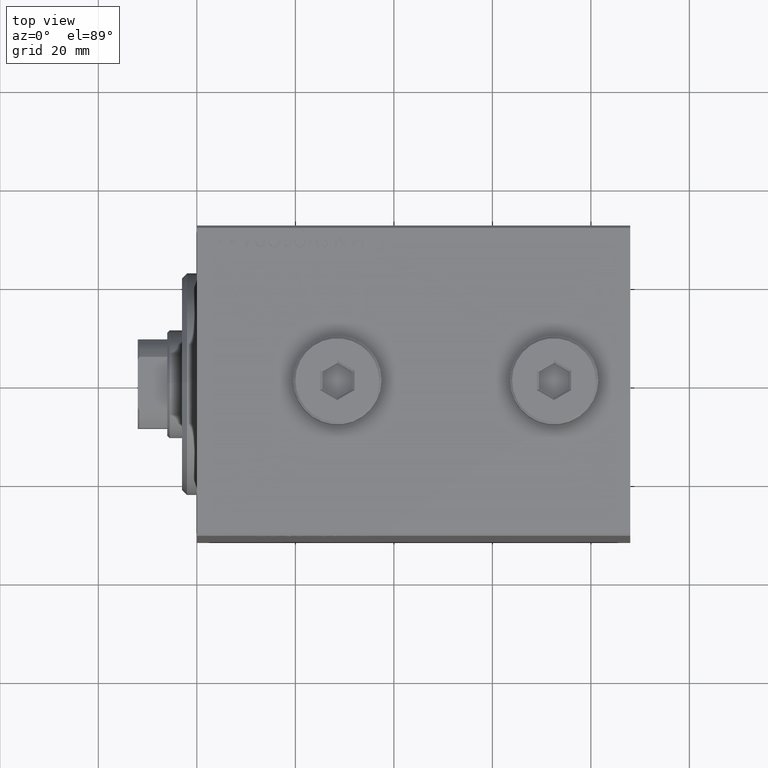
[diagram: clean part render]
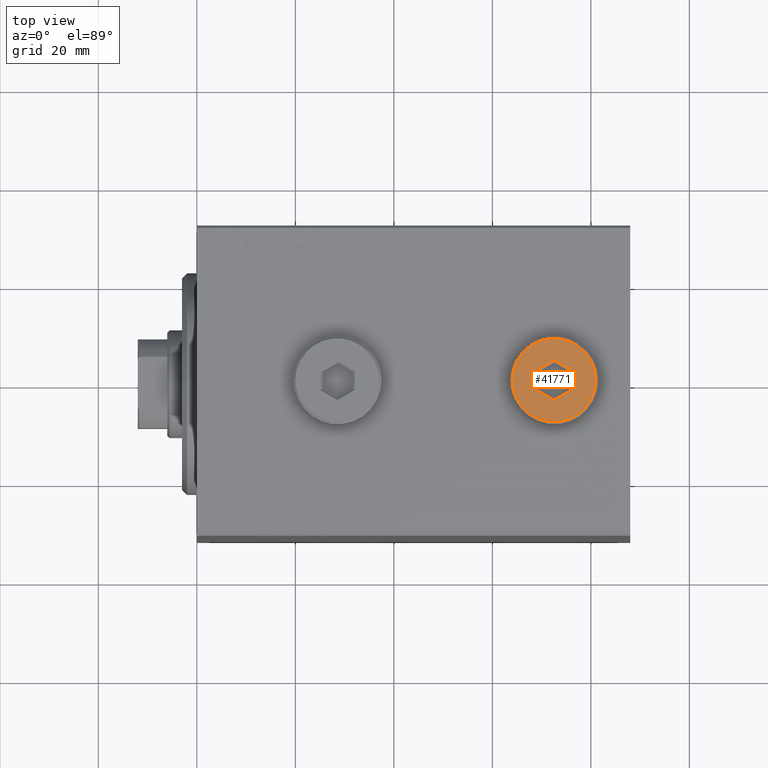
[diagram: same view with one face highlighted and labeled with its STEP entity id]
A machine part, top view. The second image highlights one B-rep face of the part: STEP entity #41771.
In plain terms, the highlighted planar face has unit normal (0, 0, 1).
Its self-contained STEP definition (entity closure, byte-faithful):
#748 = VERTEX_POINT ( 'NONE', #1966 ) ;
#1966 = CARTESIAN_POINT ( 'NONE',  ( -8.500000000000010658, 0.000000000000000000, 5.000000000000000000 ) ) ;
#2104 = CARTESIAN_POINT ( 'NONE',  ( 3.250000000000003109, 2.165063509461103042, 5.000000000000000000 ) ) ;
#2198 = CIRCLE ( 'NONE', #41950, 8.500000000000010658 ) ;
#2341 = FACE_BOUND ( 'NONE', #21967, .T. ) ;
#3637 = DIRECTION ( 'NONE',  ( 0.000000000000000000, -1.000000000000000000, 0.000000000000000000 ) ) ;
#4098 = EDGE_CURVE ( 'NONE', #9130, #30801, #15894, .T. ) ;
#4361 = DIRECTION ( 'NONE',  ( 1.000000000000000000, 0.000000000000000000, 0.000000000000000000 ) ) ;
#5094 = DIRECTION ( 'NONE',  ( 0.8660254037844387076, -0.4999999999999998890, 0.000000000000000000 ) ) ;
#5925 = CARTESIAN_POINT ( 'NONE',  ( -3.500000000000006661, 2.020725942163692945, 5.000000000000000000 ) ) ;
#6188 = VECTOR ( 'NONE', #3637, 1000.000000000000000 ) ;
#7112 = ORIENTED_EDGE ( 'NONE', *, *, #37215, .T. ) ;
#7700 = EDGE_CURVE ( 'NONE', #39334, #9130, #16422, .T. ) ;
#8735 = DIRECTION ( 'NONE',  ( -0.8660254037844385966, 0.4999999999999999445, 0.000000000000000000 ) ) ;
#9130 = VERTEX_POINT ( 'NONE', #32238 ) ;
#9147 = CARTESIAN_POINT ( 'NONE',  ( -3.500000000000006661, -2.020725942163694278, 5.000000000000000000 ) ) ;
#9254 = PLANE ( 'NONE',  #12473 ) ;
#9929 = DIRECTION ( 'NONE',  ( 1.000000000000000000, 0.000000000000000000, -0.000000000000000000 ) ) ;
#10497 = EDGE_CURVE ( 'NONE', #18276, #23288, #44279, .T. ) ;
#11286 = DIRECTION ( 'NONE',  ( 0.000000000000000000, 0.000000000000000000, 1.000000000000000000 ) ) ;
#11695 = AXIS2_PLACEMENT_3D ( 'NONE', #24902, #39412, #35495 ) ;
#12473 = AXIS2_PLACEMENT_3D ( 'NONE', #19642, #13385, #9929 ) ;
#13385 = DIRECTION ( 'NONE',  ( 0.000000000000000000, 0.000000000000000000, 1.000000000000000000 ) ) ;
#13876 = VECTOR ( 'NONE', #16874, 1000.000000000000000 ) ;
#15783 = EDGE_CURVE ( 'NONE', #20210, #748, #2198, .T. ) ;
#15894 = LINE ( 'NONE', #33410, #18030 ) ;
#15928 = CARTESIAN_POINT ( 'NONE',  ( 3.500000000000006661, 2.020725942163694722, 5.000000000000000000 ) ) ;
#16380 = LINE ( 'NONE', #40593, #18951 ) ;
#16422 = LINE ( 'NONE', #45216, #13876 ) ;
#16874 = DIRECTION ( 'NONE',  ( -0.8660254037844387076, -0.4999999999999998890, 0.000000000000000000 ) ) ;
#16951 = EDGE_LOOP ( 'NONE', ( #18998, #36371 ) ) ;
#17691 = EDGE_CURVE ( 'NONE', #18911, #18276, #25558, .T. ) ;
#18030 = VECTOR ( 'NONE', #8735, 1000.000000000000114 ) ;
#18178 = DIRECTION ( 'NONE',  ( 0.8660254037844387076, 0.4999999999999998335, 0.000000000000000000 ) ) ;
#18276 = VERTEX_POINT ( 'NONE', #34845 ) ;
#18911 = VERTEX_POINT ( 'NONE', #5925 ) ;
#18951 = VECTOR ( 'NONE', #23538, 1000.000000000000000 ) ;
#18998 = ORIENTED_EDGE ( 'NONE', *, *, #40629, .T. ) ;
#19642 = CARTESIAN_POINT ( 'NONE',  ( 0.000000000000000000, 0.000000000000000000, 5.000000000000000000 ) ) ;
#20210 = VERTEX_POINT ( 'NONE', #23423 ) ;
#21181 = CARTESIAN_POINT ( 'NONE',  ( -0.2500000000000027756, 3.897114317029978459, 5.000000000000000000 ) ) ;
#21967 = EDGE_LOOP ( 'NONE', ( #7112, #42741, #38911, #30120, #41321, #37653 ) ) ;
#23288 = VERTEX_POINT ( 'NONE', #15928 ) ;
#23423 = CARTESIAN_POINT ( 'NONE',  ( 8.500000000000010658, 1.071565949253934716E-15, 5.000000000000000000 ) ) ;
#23538 = DIRECTION ( 'NONE',  ( 0.000000000000000000, 1.000000000000000000, 0.000000000000000000 ) ) ;
#23729 = LINE ( 'NONE', #41913, #6188 ) ;
#24902 = CARTESIAN_POINT ( 'NONE',  ( 0.000000000000000000, 0.000000000000000000, 5.000000000000000000 ) ) ;
#25558 = LINE ( 'NONE', #21181, #43453 ) ;
#28628 = CIRCLE ( 'NONE', #11695, 8.500000000000010658 ) ;
#28810 = CARTESIAN_POINT ( 'NONE',  ( 0.000000000000000000, 0.000000000000000000, 5.000000000000000000 ) ) ;
#30120 = ORIENTED_EDGE ( 'NONE', *, *, #30631, .T. ) ;
#30631 = EDGE_CURVE ( 'NONE', #23288, #39334, #23729, .T. ) ;
#30801 = VERTEX_POINT ( 'NONE', #9147 ) ;
#32238 = CARTESIAN_POINT ( 'NONE',  ( -1.006139216460143630E-15, -4.041451884327387667, 5.000000000000000000 ) ) ;
#33410 = CARTESIAN_POINT ( 'NONE',  ( -3.250000000000003109, -2.165063509461102598, 5.000000000000000000 ) ) ;
#33829 = VECTOR ( 'NONE', #5094, 1000.000000000000000 ) ;
#34743 = CARTESIAN_POINT ( 'NONE',  ( 3.500000000000006661, -2.020725942163693833, 5.000000000000000000 ) ) ;
#34845 = CARTESIAN_POINT ( 'NONE',  ( 1.590596867181068292E-15, 4.041451884327386779, 5.000000000000000000 ) ) ;
#35495 = DIRECTION ( 'NONE',  ( 1.000000000000000000, 0.000000000000000000, 0.000000000000000000 ) ) ;
#36371 = ORIENTED_EDGE ( 'NONE', *, *, #15783, .T. ) ;
#37215 = EDGE_CURVE ( 'NONE', #30801, #18911, #16380, .T. ) ;
#37653 = ORIENTED_EDGE ( 'NONE', *, *, #4098, .T. ) ;
#38911 = ORIENTED_EDGE ( 'NONE', *, *, #10497, .T. ) ;
#39334 = VERTEX_POINT ( 'NONE', #34743 ) ;
#39412 = DIRECTION ( 'NONE',  ( 0.000000000000000000, 0.000000000000000000, 1.000000000000000000 ) ) ;
#40593 = CARTESIAN_POINT ( 'NONE',  ( -3.500000000000006661, 1.732050807568878081, 5.000000000000000000 ) ) ;
#40629 = EDGE_CURVE ( 'NONE', #748, #20210, #28628, .T. ) ;
#41321 = ORIENTED_EDGE ( 'NONE', *, *, #7700, .T. ) ;
#41738 = FACE_OUTER_BOUND ( 'NONE', #16951, .T. ) ;
#41771 = ADVANCED_FACE ( 'NONE', ( #2341, #41738 ), #9254, .T. ) ;
#41913 = CARTESIAN_POINT ( 'NONE',  ( 3.500000000000006661, -1.732050807568878303, 5.000000000000000000 ) ) ;
#41950 = AXIS2_PLACEMENT_3D ( 'NONE', #28810, #11286, #4361 ) ;
#42741 = ORIENTED_EDGE ( 'NONE', *, *, #17691, .T. ) ;
#43453 = VECTOR ( 'NONE', #18178, 1000.000000000000000 ) ;
#44279 = LINE ( 'NONE', #2104, #33829 ) ;
#45216 = CARTESIAN_POINT ( 'NONE',  ( 0.2500000000000027756, -3.897114317029979347, 5.000000000000000000 ) ) ;